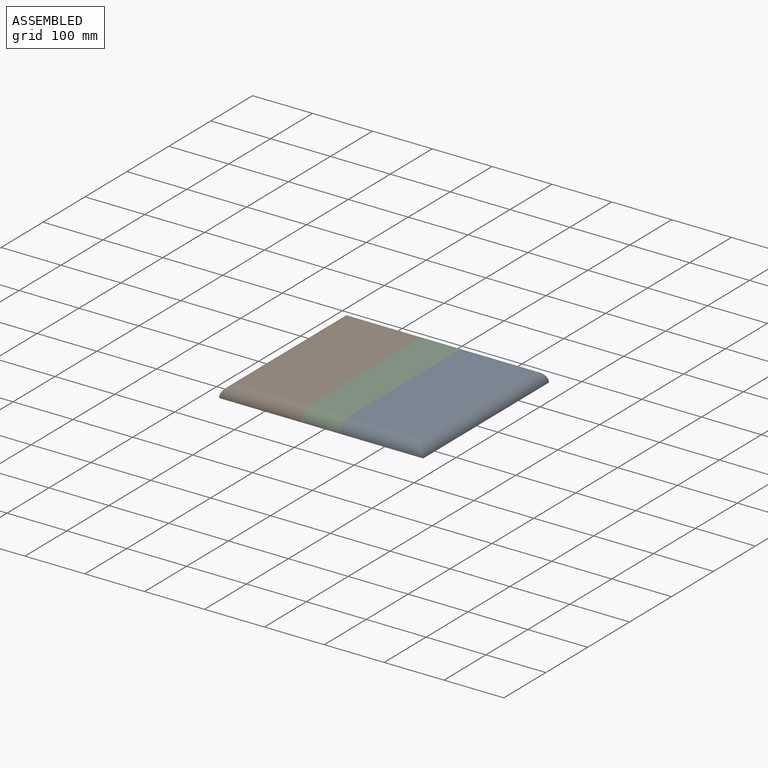
[diagram: assembled view]
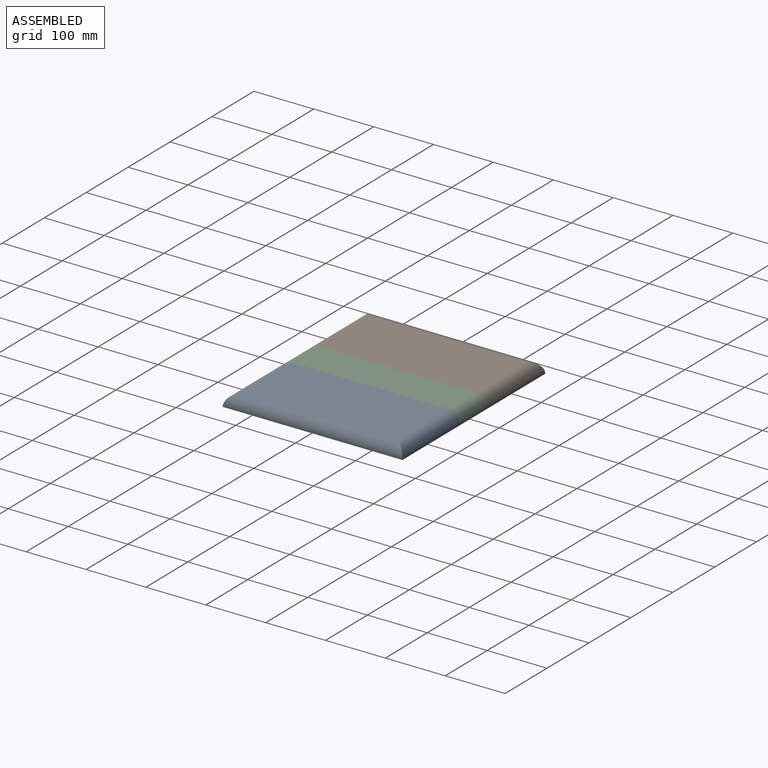
[diagram: assembled view, second angle]
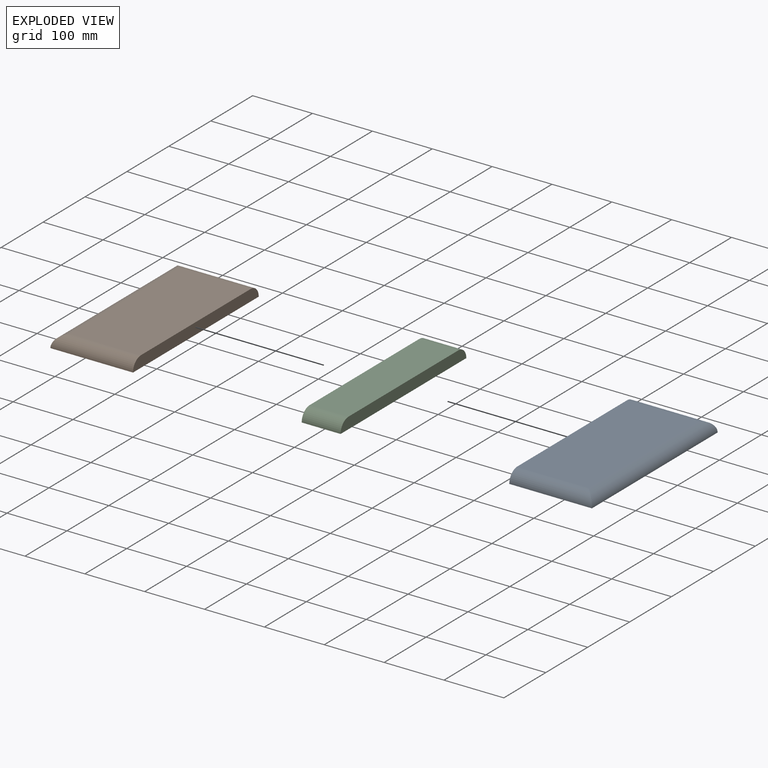
[diagram: exploded view]
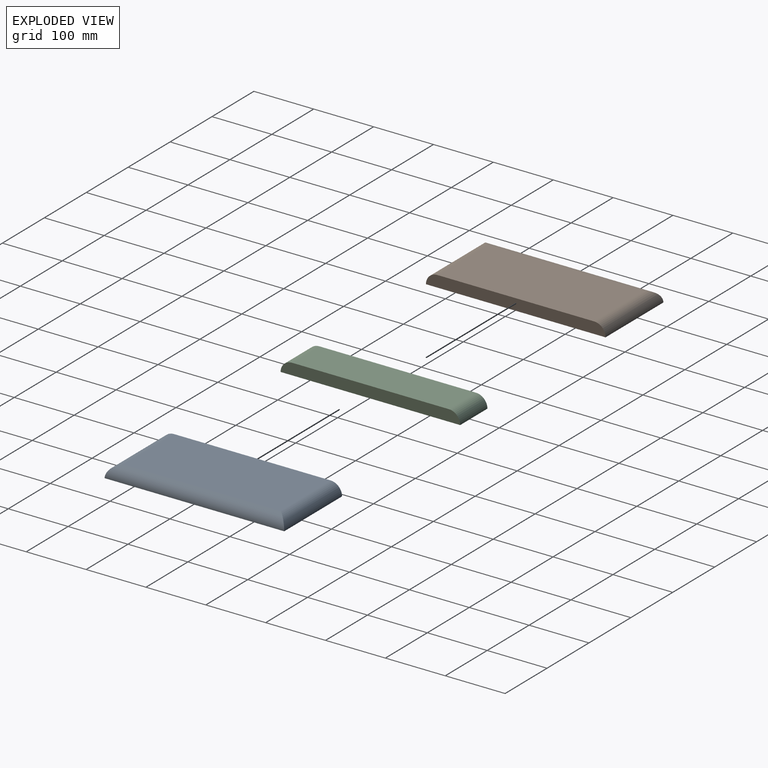
[diagram: exploded view, second angle]
ASSEMBLY  parts=3 mates=2
PART A: 6 faces, bbox 138x300x19 mm
  f0: plane 300x19mm, normal (-1,0,0), area 5545.1mm2, adj f1,f2,f3,f5
  f1: plane 262x119mm, normal (0,0,1), area 31178mm2, adj f0,f3,f4,f5
  f2: plane 300x138mm, normal (0,0,-1), area 41400mm2, adj f0,f3,f4,f5
  f3: cylinder r=19mm len=138mm, axis (1,0,0), area 3912.6mm2, adj f0,f1,f2,f4
  f4: cylinder r=19mm len=300mm, axis (0,-1,0), area 8541.4mm2, adj f1,f2,f3,f5
  f5: cylinder r=19mm len=138mm, axis (-1,0,0), area 3912.6mm2, adj f0,f1,f2,f4
PART B: 6 faces, bbox 138x300x19 mm
  f0: plane 300x19mm, normal (1,0,0), area 5545.1mm2, adj f1,f2,f3,f5
  f1: plane 262x119mm, normal (0,0,1), area 31178mm2, adj f0,f3,f4,f5
  f2: plane 300x138mm, normal (0,0,-1), area 41400mm2, adj f0,f3,f4,f5
  f3: cylinder r=19mm len=138mm, axis (1,0,0), area 3912.6mm2, adj f0,f1,f2,f4
  f4: cylinder r=19mm len=300mm, axis (0,1,0), area 8541.4mm2, adj f1,f2,f3,f5
  f5: cylinder r=19mm len=138mm, axis (-1,0,0), area 3912.6mm2, adj f0,f1,f2,f4
PART C: 6 faces, bbox 65x300x19 mm
  f0: plane 300x19mm, normal (-1,0,0), area 5545.1mm2, adj f2,f3,f4,f5
  f1: plane 300x19mm, normal (1,0,0), area 5545.1mm2, adj f2,f3,f4,f5
  f2: plane 262x65mm, normal (0,0,1), area 17030mm2, adj f0,f1,f4,f5
  f3: plane 300x65mm, normal (0,0,-1), area 19500mm2, adj f0,f1,f4,f5
  f4: cylinder r=19mm len=65mm, axis (-1,0,0), area 1939.9mm2, adj f0,f1,f2,f3
  f5: cylinder r=19mm len=65mm, axis (1,0,0), area 1939.9mm2, adj f0,f1,f2,f3
PLACE A t=(281.64,-61.1,3.72)mm
PLACE B t=(-148.84,25.7,3.72)mm
PLACE C t=(318.76,159.63,3.72)mm
MATE fastened C.f1 <-> A.f0  axis (1,0,0) through (135.41,9.63,13.07)mm
MATE fastened C.f0 <-> B.f0  axis (-1,0,0) through (70.41,9.63,13.07)mm
